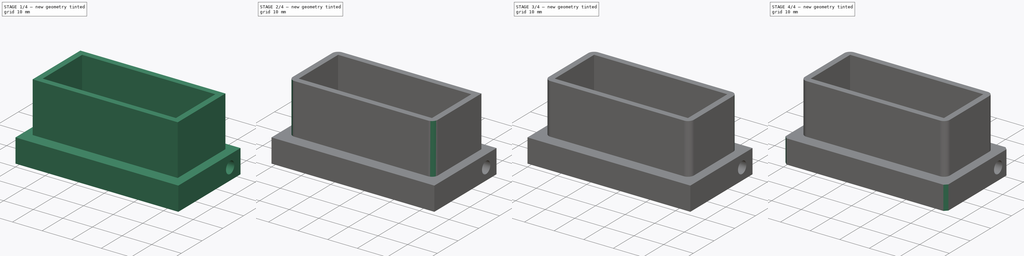
[diagram: build sequence overview — one tinted view per stage of 4, left to right]
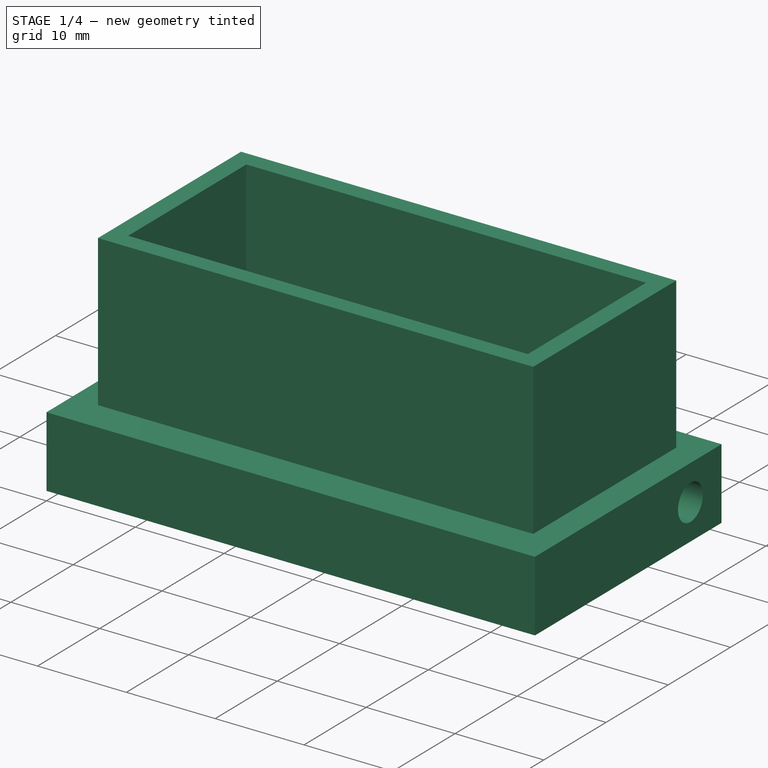
[diagram: stage 1 of 4 — iso view after this stage's code; geometry added in this stage tinted green]
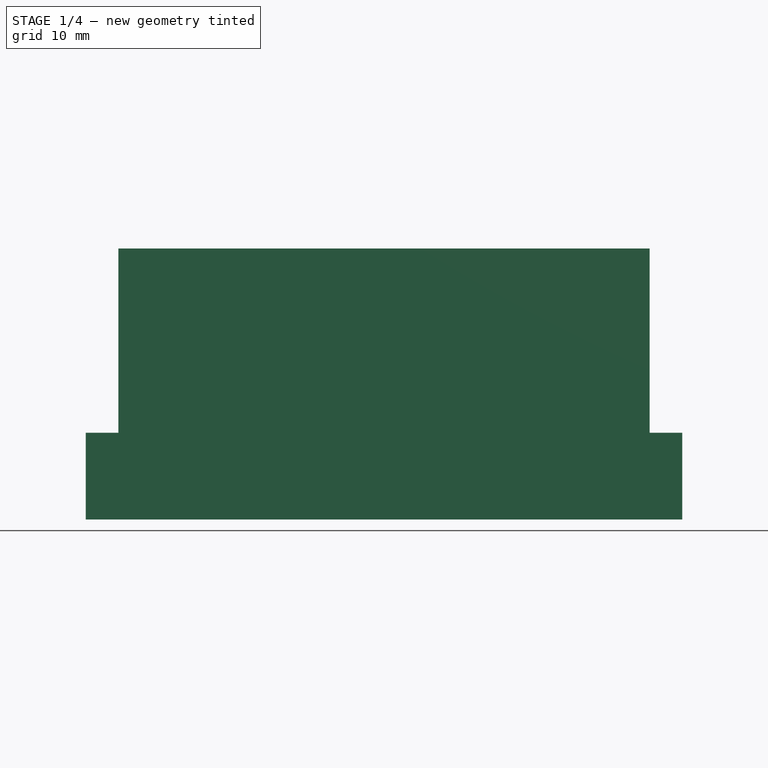
[diagram: stage 1 of 4 — front view after this stage's code; geometry added in this stage tinted green]
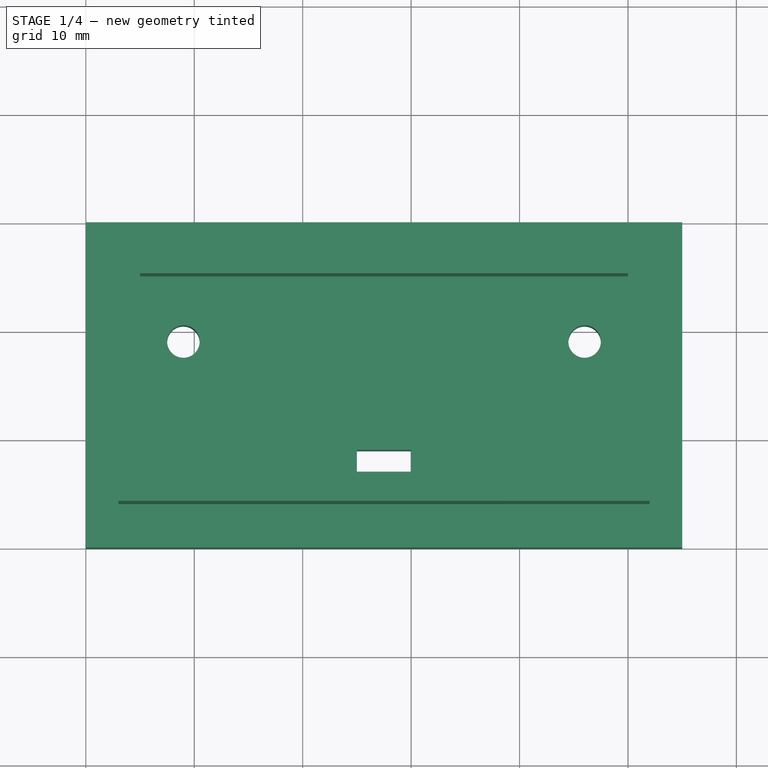
[diagram: stage 1 of 4 — top view after this stage's code; geometry added in this stage tinted green]
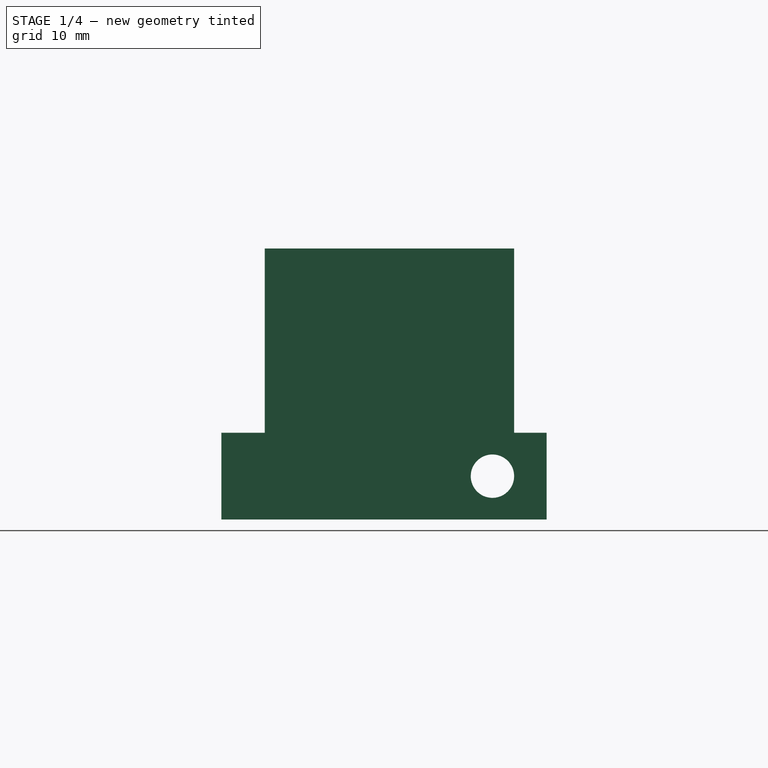
[diagram: stage 1 of 4 — right view after this stage's code; geometry added in this stage tinted green]
FCSTD DOCUMENT  (FreeCAD 0.16R6706 (Git))
Label: iROB-EA_SensorSuelo
License: All rights reserved
LicenseURL: http://en.wikipedia.org/wiki/All_rights_reserved
objects: Sketcher::SketchObject×6, PartDesign::Pocket×4, PartDesign::Fillet×4, PartDesign::Chamfer×4, PartDesign::Pad×2
note: 26 computed .brp shape members not serialized (recipe doc carries the construction recipe); baked Part::Feature solids carry a one-line shape summary decoded from their .brp

FEATURE [Sketcher::SketchObject] Sketch  label="Base"
  sketch-geometry (4):
    g0: LineSegment StartX=0 StartY=30 StartZ=0 EndX=55 EndY=30 EndZ=0
    g1: LineSegment StartX=55 StartY=30 StartZ=0 EndX=55 EndY=0 EndZ=0
    g2: LineSegment StartX=55 StartY=0 StartZ=0 EndX=0 EndY=0 EndZ=0
    g3: LineSegment StartX=0 StartY=0 StartZ=0 EndX=0 EndY=30 EndZ=0
  constraints (11):
    c: Coincident(g0,g1)
    c: Coincident(g1,g2)
    c: Coincident(g2,g3)
    c: Coincident(g3,g0)
    c: Horizontal(g0)
    c: Horizontal(g2)
    c: Vertical(g1)
    c: Vertical(g3)
    c: DistanceX(g0,g0) = 55
    c: DistanceY(g1,g1) = 30
    c: Coincident(g2,g-1)
FEATURE [PartDesign::Pad] Pad
  Length = 8
  Length2 = 100
  Sketch = -> Sketch
  Type = 0
FEATURE [Sketcher::SketchObject] Sketch001  label="Tornillos_Sensor_Cable"
  Placement = pos=(0,0,8) rot=(0,0,1;0rad)
  Support = -> Pad [Face6]
  sketch-geometry (6):
    g0: Circle CenterX=9 CenterY=19 CenterZ=0 NormalX=0 NormalY=0 NormalZ=1 Radius=1.5
    g1: Circle CenterX=46 CenterY=19 CenterZ=0 NormalX=0 NormalY=0 NormalZ=1 Radius=1.5
    g2: LineSegment StartX=25 StartY=9 StartZ=0 EndX=30 EndY=9 EndZ=0
    g3: LineSegment StartX=30 StartY=9 StartZ=0 EndX=30 EndY=7 EndZ=0
    g4: LineSegment StartX=30 StartY=7 StartZ=0 EndX=25 EndY=7 EndZ=0
    g5: LineSegment StartX=25 StartY=7 StartZ=0 EndX=25 EndY=9 EndZ=0
  constraints (18):
    c: Radius(g0) = 1.5
    c: Radius(g1) = 1.5
    c: DistanceY(g0,g1) = 0
    c: DistanceX(g0,g1) = 37
    c: DistanceX(g0,g-1) = -9
    c: DistanceY(g-1,g0) = 19
    c: Coincident(g2,g3)
    c: Coincident(g3,g4)
    c: Coincident(g4,g5)
    c: Coincident(g5,g2)
    c: Horizontal(g2)
    c: Horizontal(g4)
    c: Vertical(g3)
    c: Vertical(g5)
    c: DistanceX(g2,g2) = 5
    c: DistanceY(g3,g3) = 2
    c: DistanceX(g-1,g4) = 25
    c: DistanceY(g-1,g4) = 7
FEATURE [PartDesign::Pocket] Pocket
  Length = 8
  Sketch = -> Sketch001
  Type = 0
FEATURE [Sketcher::SketchObject] Sketch002  label="Marco_Sensor"
  Placement = pos=(0,0,8) rot=(0,0,1;0rad)
  Support = -> Pocket [Face5]
  sketch-geometry (8):
    g0: LineSegment StartX=5 StartY=25 StartZ=0 EndX=50 EndY=25 EndZ=0
    g1: LineSegment StartX=50 StartY=25 StartZ=0 EndX=50 EndY=6 EndZ=0
    g2: LineSegment StartX=50 StartY=6 StartZ=0 EndX=5 EndY=6 EndZ=0
    g3: LineSegment StartX=5 StartY=6 StartZ=0 EndX=5 EndY=25 EndZ=0
    g4: LineSegment StartX=3 StartY=27 StartZ=0 EndX=52 EndY=27 EndZ=0
    g5: LineSegment StartX=52 StartY=27 StartZ=0 EndX=52 EndY=4 EndZ=0
    g6: LineSegment StartX=52 StartY=4 StartZ=0 EndX=3 EndY=4 EndZ=0
    g7: LineSegment StartX=3 StartY=4 StartZ=0 EndX=3 EndY=27 EndZ=0
  constraints (24):
    c: Coincident(g0,g1)
    c: Coincident(g1,g2)
    c: Coincident(g2,g3)
    c: Coincident(g3,g0)
    c: Horizontal(g0)
    c: Horizontal(g2)
    c: Vertical(g1)
    c: Vertical(g3)
    c: DistanceX(g0,g0) = 45
    c: DistanceY(g1,g1) = 19
    c: DistanceX(g-1,g2) = 5
    c: DistanceY(g-1,g2) = 6
    c: Coincident(g4,g5)
    c: Coincident(g5,g6)
    c: Coincident(g6,g7)
    c: Coincident(g7,g4)
    c: Horizontal(g4)
    c: Horizontal(g6)
    c: Vertical(g5)
    c: Vertical(g7)
    c: DistanceX(g4,g4) = 49
    c: DistanceY(g5,g5) = 23
    c: DistanceX(g6,g2) = 2
    c: DistanceY(g2,g6) = -2
FEATURE [PartDesign::Pad] Pad001
  Length = 17
  Length2 = 100
  Sketch = -> Sketch002
  Type = 0
FEATURE [Sketcher::SketchObject] Sketch003  label="Conducto_Varilla"
  Placement = pos=(55,0,0) rot=(0.57735,0.57735,0.57735;2.0944rad)
  Support = -> Pad001 [Face3]
  sketch-geometry (1):
    g0: Circle CenterX=25 CenterY=4 CenterZ=0 NormalX=0 NormalY=0 NormalZ=1 Radius=2
  constraints (3):
    c: Radius(g0) = 2
    c: DistanceY(g-1,g0) = 4
    c: DistanceX(g0,g-1) = -25
FEATURE [PartDesign::Pocket] Pocket001
  Length = 60
  Sketch = -> Sketch003
  Type = 0
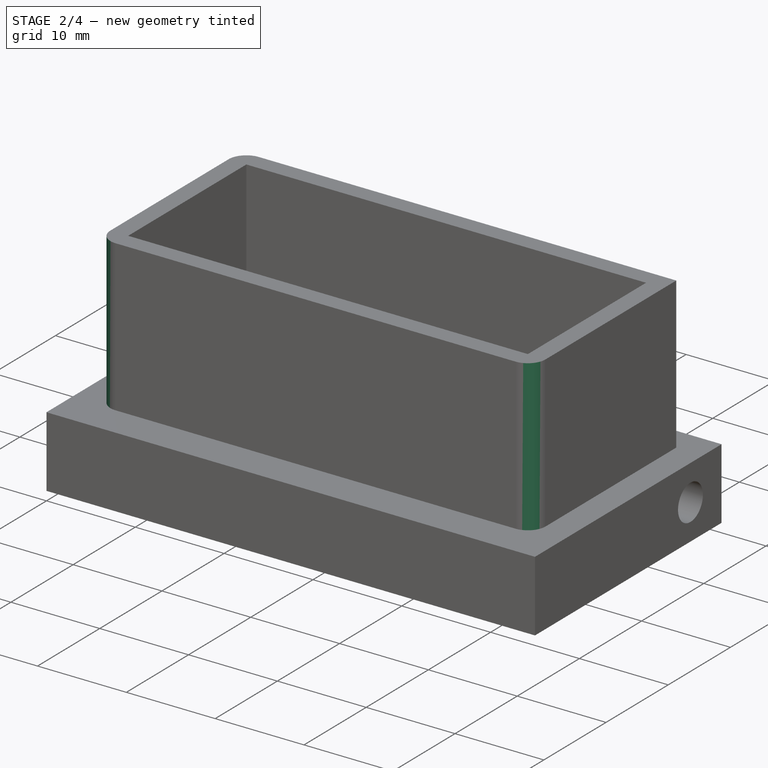
[diagram: stage 2 of 4 — iso view after this stage's code; geometry added in this stage tinted green]
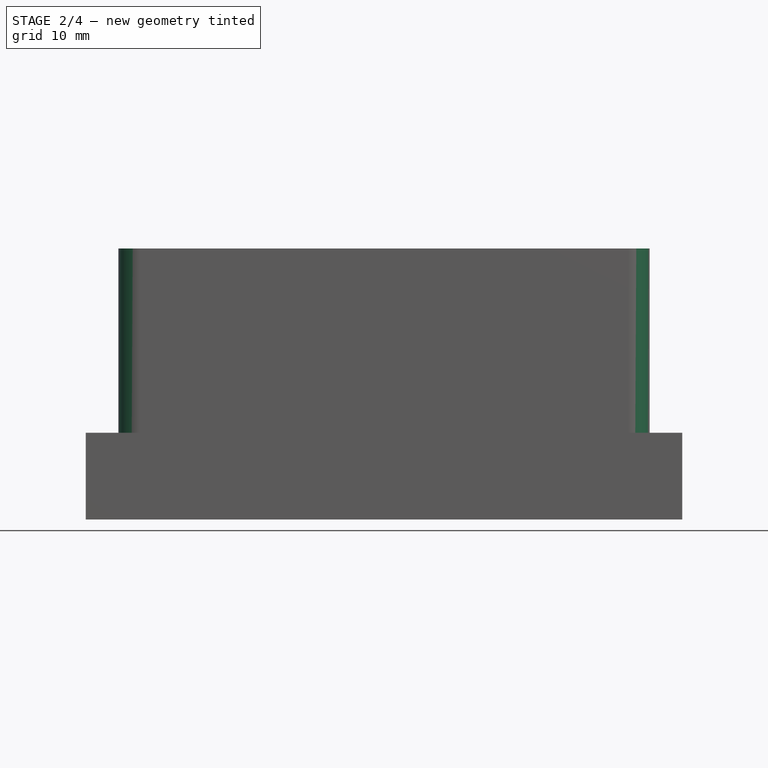
[diagram: stage 2 of 4 — front view after this stage's code; geometry added in this stage tinted green]
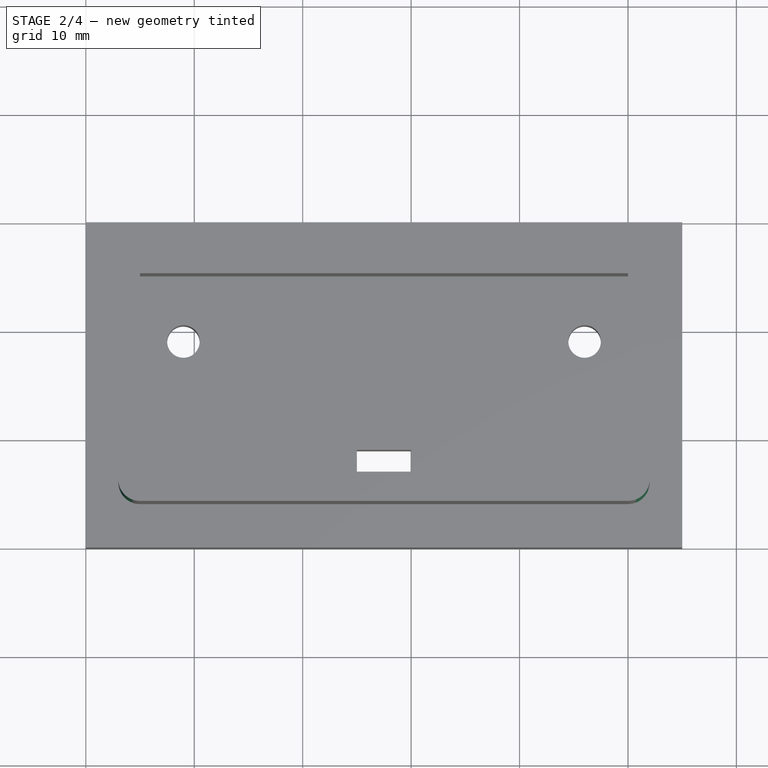
[diagram: stage 2 of 4 — top view after this stage's code; geometry added in this stage tinted green]
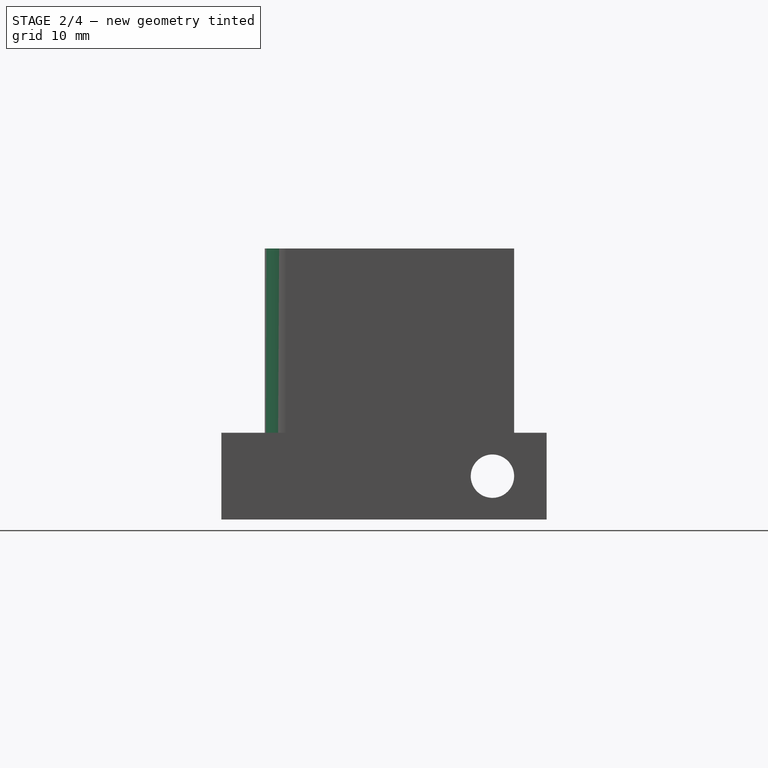
[diagram: stage 2 of 4 — right view after this stage's code; geometry added in this stage tinted green]
FEATURE [PartDesign::Fillet] Fillet  label="Borde_Marco_Sensor_0"
  Base = -> Pocket001 [Edge43]
  Radius = 2
FEATURE [PartDesign::Fillet] Fillet001  label="Borde_Marco_Sensor_1"
  Base = -> Fillet [Edge11]
  Radius = 2
FEATURE [PartDesign::Fillet] Fillet002  label="Borde_Marco_Sensor_2"
  Base = -> Fillet001 [Edge20]
  Radius = 2
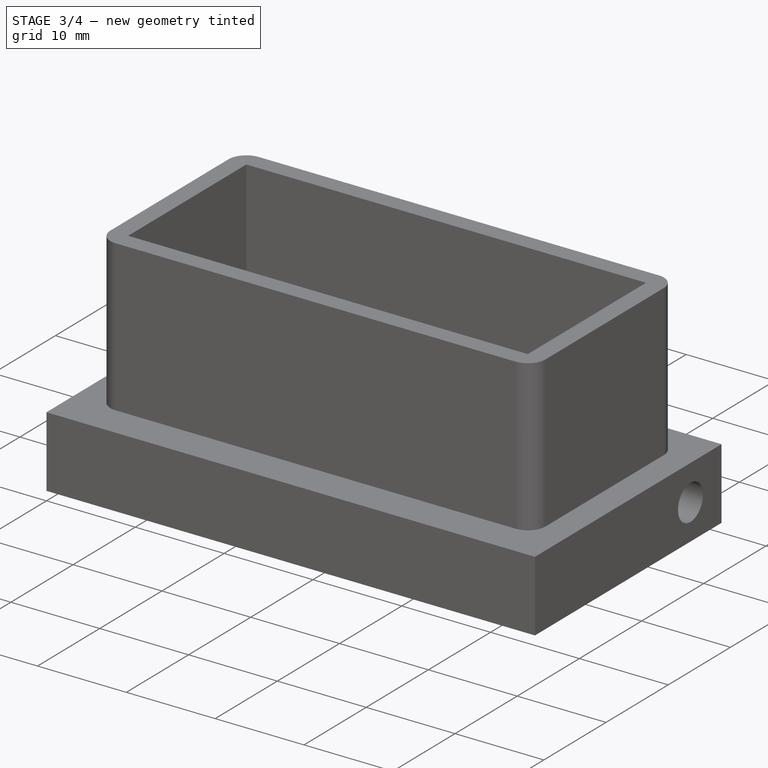
[diagram: stage 3 of 4 — iso view after this stage's code; geometry added in this stage tinted green]
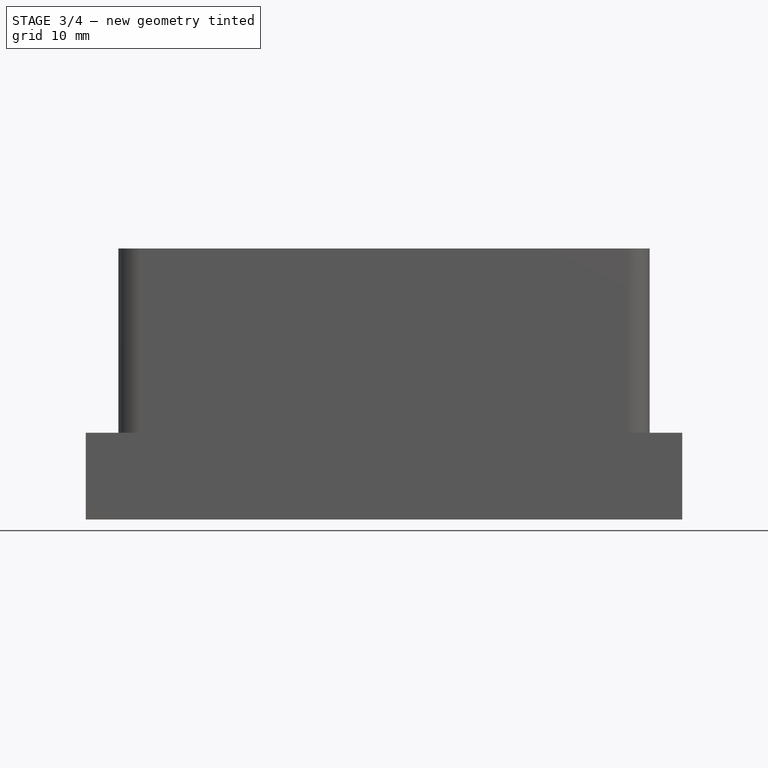
[diagram: stage 3 of 4 — front view after this stage's code; geometry added in this stage tinted green]
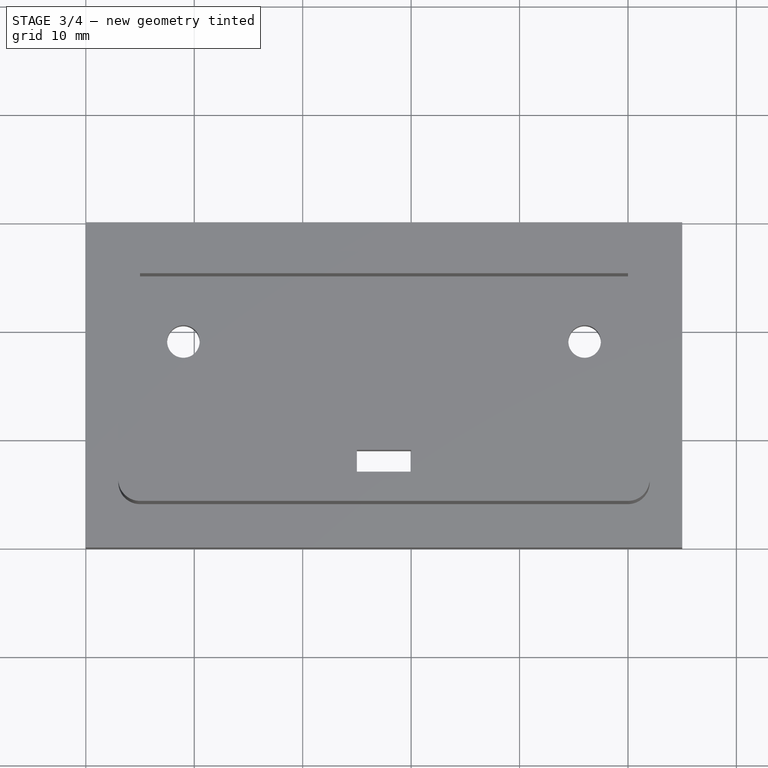
[diagram: stage 3 of 4 — top view after this stage's code; geometry added in this stage tinted green]
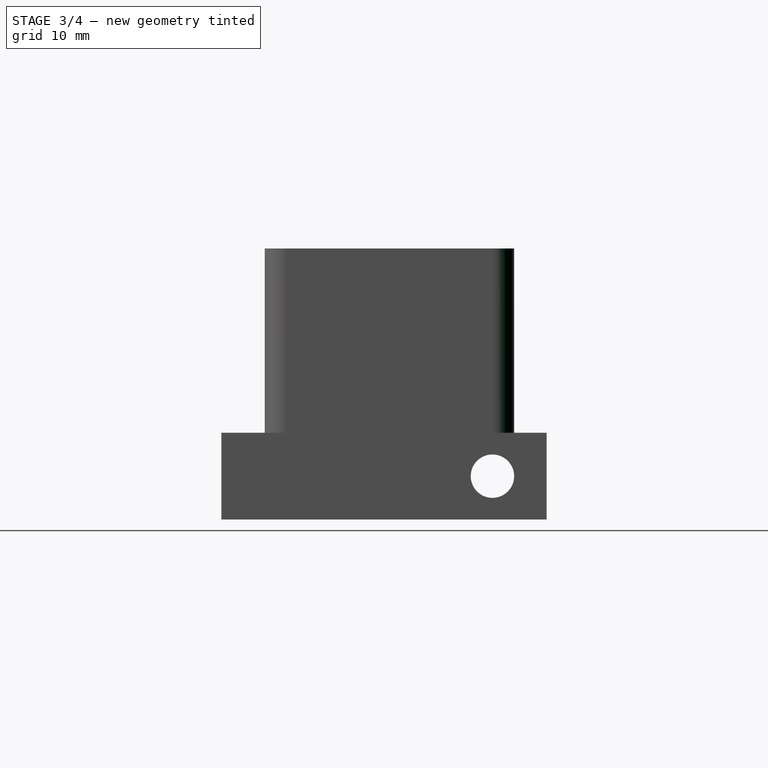
[diagram: stage 3 of 4 — right view after this stage's code; geometry added in this stage tinted green]
FEATURE [PartDesign::Fillet] Fillet003  label="Borde_Marco_Sensor_3"
  Base = -> Fillet002 [Edge19]
  Radius = 2
FEATURE [Sketcher::SketchObject] Sketch004  label="Carril_Cable"
  Placement = pos=(0,0,0) rot=(1,0,0;3.14159rad)
  Support = -> Fillet003 [Face15]
  sketch-geometry (8):
    g0: LineSegment StartX=25 StartY=-8 StartZ=0 EndX=30 EndY=-8 EndZ=0
    g1: LineSegment StartX=30 StartY=-8 StartZ=0 EndX=30 EndY=-28 EndZ=0
    g2: LineSegment StartX=30 StartY=-28 StartZ=0 EndX=25 EndY=-28 EndZ=0
    g3: LineSegment StartX=25 StartY=-28 StartZ=0 EndX=25 EndY=-8 EndZ=0
    g4: LineSegment StartX=2 StartY=-23 StartZ=0 EndX=25 EndY=-23 EndZ=0
    g5: LineSegment StartX=25 StartY=-23 StartZ=0 EndX=25 EndY=-28 EndZ=0
    g6: LineSegment StartX=25 StartY=-28 StartZ=0 EndX=2 EndY=-28 EndZ=0
    g7: LineSegment StartX=2 StartY=-28 StartZ=0 EndX=2 EndY=-23 EndZ=0
  constraints (23):
    c: Coincident(g0,g1)
    c: Coincident(g1,g2)
    c: Coincident(g2,g3)
    c: Coincident(g3,g0)
    c: Horizontal(g0)
    c: Horizontal(g2)
    c: Vertical(g1)
    c: Vertical(g3)
    c: DistanceX(g0,g0) = 5
    c: DistanceY(g1,g1) = 20
    c: DistanceX(g-1,g0) = 25
    c: DistanceY(g-1,g0) = -8
    c: Coincident(g4,g5)
    c: Coincident(g5,g6)
    c: Coincident(g6,g7)
    c: Coincident(g7,g4)
    c: Horizontal(g4)
    c: Horizontal(g6)
    c: Vertical(g5)
    c: Vertical(g7)
    c: Coincident(g5,g2)
    c: DistanceY(g5,g5) = 5
    c: DistanceX(g4,g4) = 23
FEATURE [PartDesign::Pocket] Pocket002
  Length = 1
  Sketch = -> Sketch004
  Type = 0
FEATURE [Sketcher::SketchObject] Sketch005  label="Tornillos_Sensor_Cabeza"
  Placement = pos=(0,0,0) rot=(1,0,0;3.14159rad)
  Support = -> Pocket002 [Face15]
  sketch-geometry (2):
    g0: Circle CenterX=9 CenterY=-19 CenterZ=0 NormalX=0 NormalY=0 NormalZ=1 Radius=3
    g1: Circle CenterX=46 CenterY=-19 CenterZ=0 NormalX=0 NormalY=0 NormalZ=1 Radius=3
  constraints (6):
    c: Radius(g0) = 3
    c: DistanceX(g0,g-1) = -9
    c: DistanceY(g-1,g0) = -19
    c: Radius(g1) = 3
    c: DistanceY(g0,g1) = 0
    c: DistanceX(g0,g1) = 37
FEATURE [PartDesign::Pocket] Pocket003
  Length = 2
  Sketch = -> Sketch005
  Type = 0
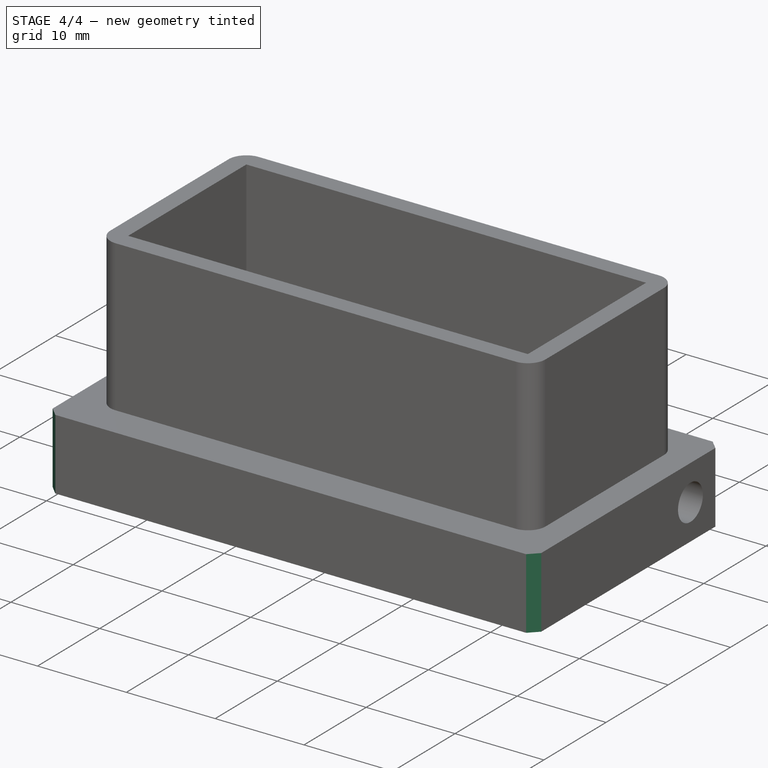
[diagram: stage 4 of 4 — iso view after this stage's code; geometry added in this stage tinted green]
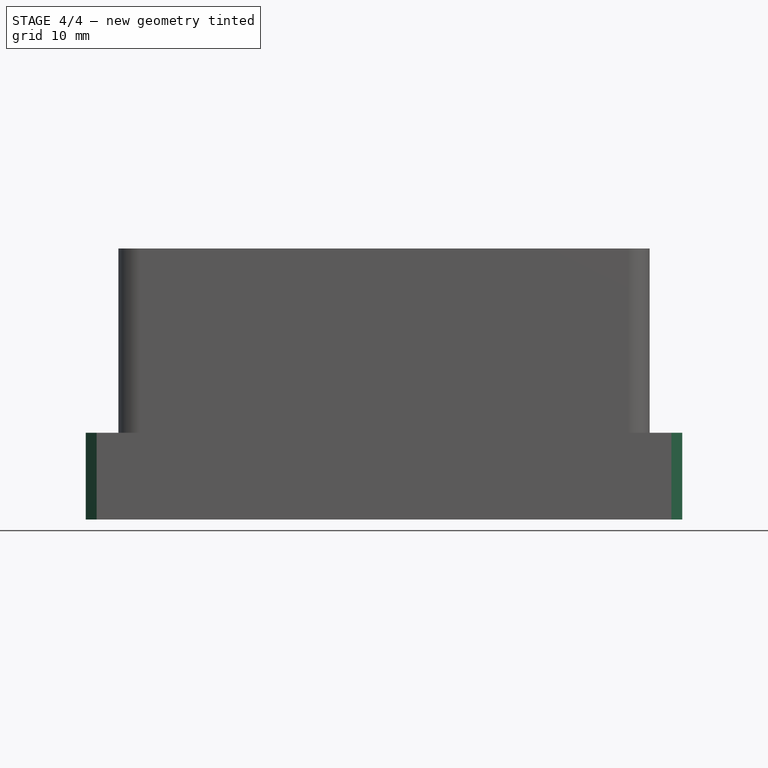
[diagram: stage 4 of 4 — front view after this stage's code; geometry added in this stage tinted green]
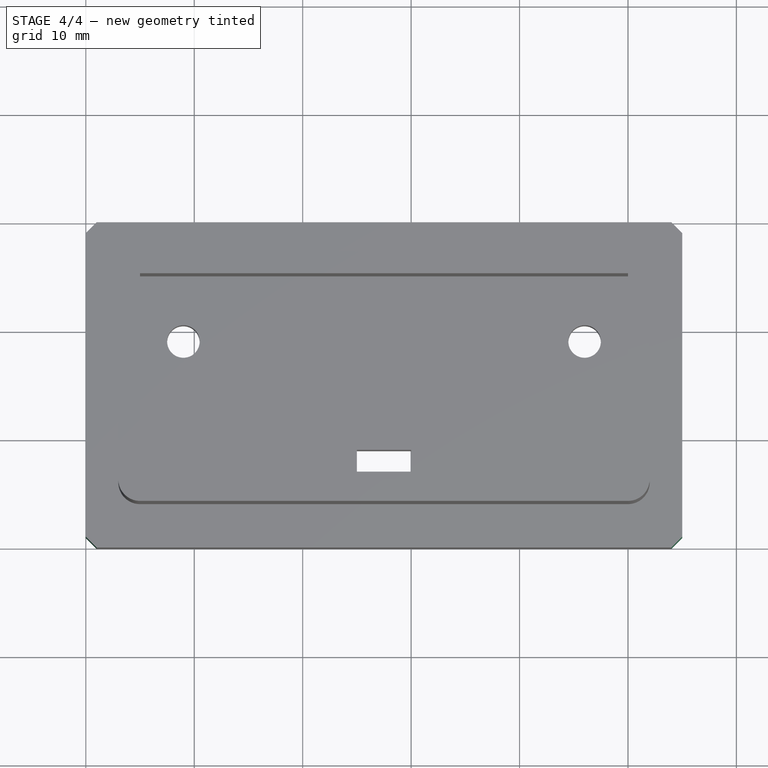
[diagram: stage 4 of 4 — top view after this stage's code; geometry added in this stage tinted green]
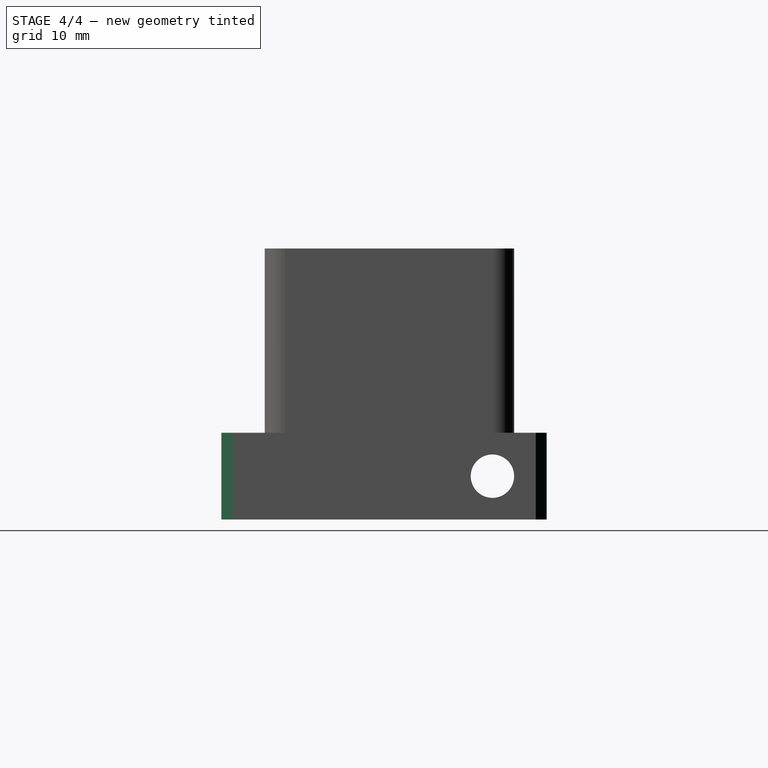
[diagram: stage 4 of 4 — right view after this stage's code; geometry added in this stage tinted green]
FEATURE [PartDesign::Chamfer] Chamfer
  Base = -> Pocket003 [Edge30]
  Size = 1
FEATURE [PartDesign::Chamfer] Chamfer001
  Base = -> Chamfer [Edge23]
  Size = 1
FEATURE [PartDesign::Chamfer] Chamfer002
  Base = -> Chamfer001 [Edge26]
  Size = 1
FEATURE [PartDesign::Chamfer] Chamfer003
  Base = -> Chamfer002 [Edge24]
  Size = 1
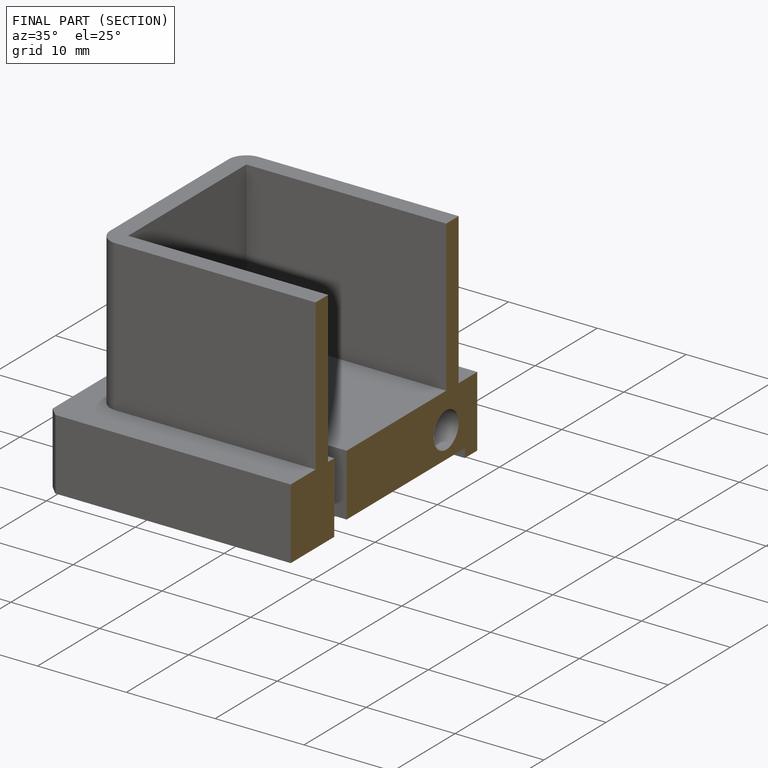
[diagram: finished part — half-section view (interior)]
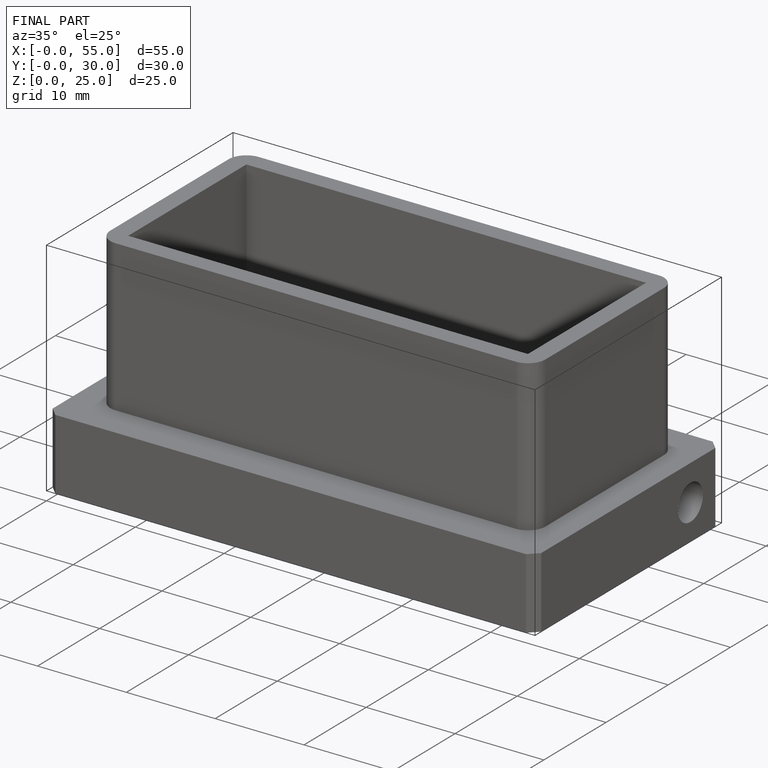
[diagram: finished part — iso view with bounding-box wireframe]
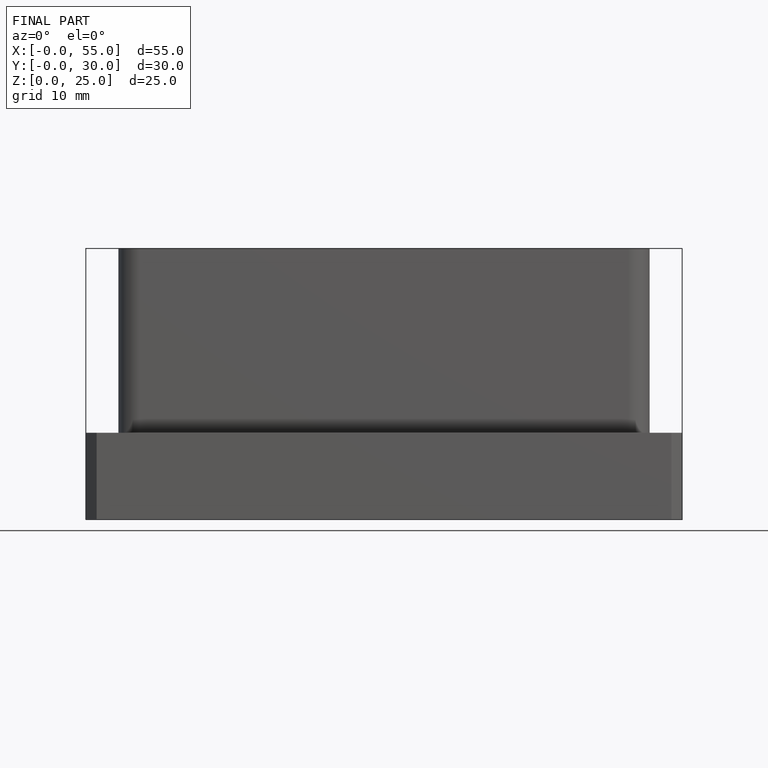
[diagram: finished part — front view with bounding-box wireframe]
